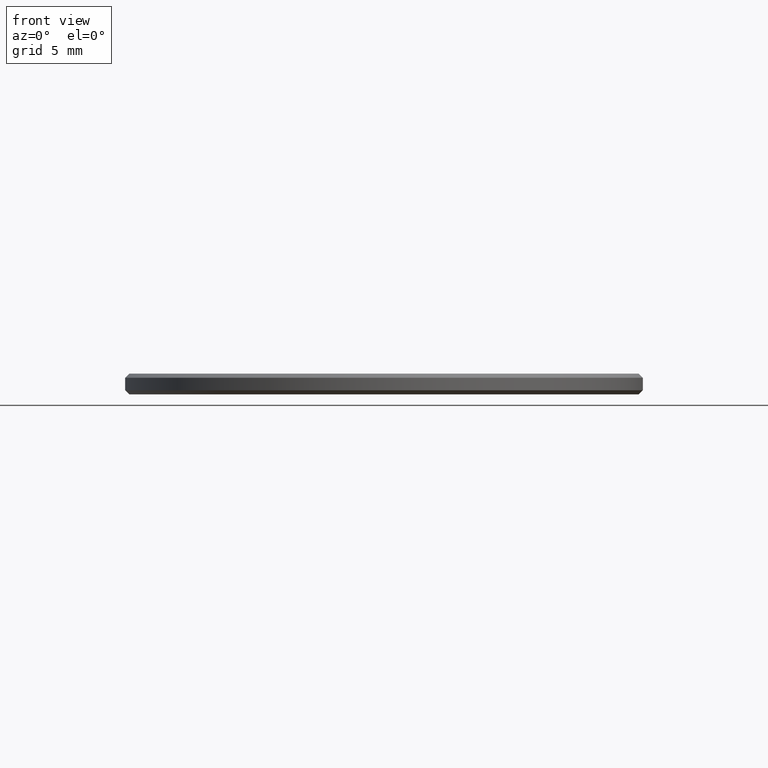
[diagram: clean part render]
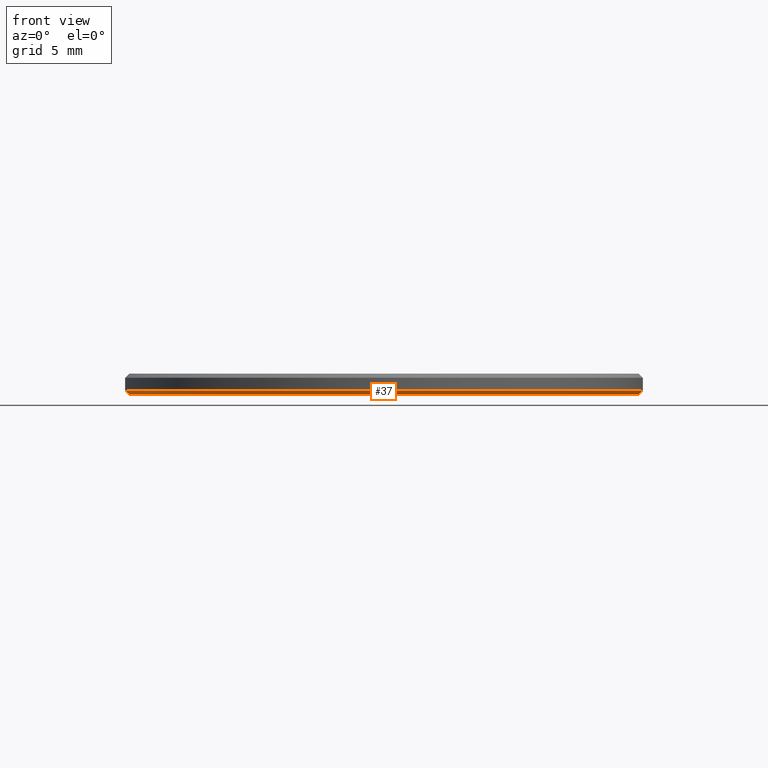
[diagram: same view with one face highlighted and labeled with its STEP entity id]
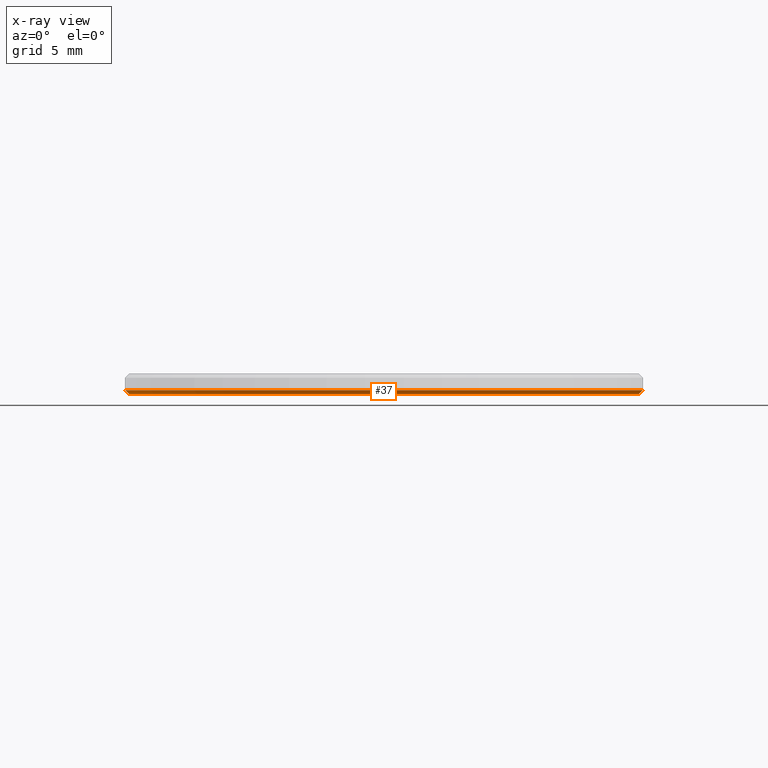
[diagram: x-ray of the same camera — body ghosted, the highlighted face saturated]
A machine part, front view. The second image highlights one B-rep face of the part: STEP entity #37.
The next image is the same camera in x-ray: the body ghosted, the highlighted face saturated — about 0% of this face is hidden behind the body in this view.
In plain terms, the highlighted conical surface has half-angle 45 deg.
Its self-contained STEP definition (entity closure, byte-faithful):
#1 = EDGE_CURVE ( 'NONE', #113, #114, #56, .T. ) ;
#3 = LINE ( 'NONE', #24, #41 ) ;
#5 = CARTESIAN_POINT ( 'NONE',  ( -12.50000000000000000, 0.000000000000000000, 0.1999999999999987899 ) ) ;
#8 = DIRECTION ( 'NONE',  ( -0.7071067811865474617, 8.659560562354932858E-17, 0.7071067811865474617 ) ) ;
#11 = DIRECTION ( 'NONE',  ( -0.000000000000000000, -0.000000000000000000, 1.000000000000000000 ) ) ;
#20 = AXIS2_PLACEMENT_3D ( 'NONE', #176, #83, #157 ) ;
#24 = CARTESIAN_POINT ( 'NONE',  ( -12.50000000000000000, 1.530808498934191521E-15, 0.1999999999999987899 ) ) ;
#37 = ADVANCED_FACE ( 'NONE', ( #198 ), #40, .T. ) ;
#40 = CONICAL_SURFACE ( 'NONE', #221, 12.50000000000000000, 0.7853981633974482790 ) ;
#41 = VECTOR ( 'NONE', #8, 1000.000000000000114 ) ;
#56 = LINE ( 'NONE', #65, #183 ) ;
#60 = DIRECTION ( 'NONE',  ( 1.000000000000000000, 0.000000000000000000, 0.000000000000000000 ) ) ;
#63 = ORIENTED_EDGE ( 'NONE', *, *, #1, .T. ) ;
#65 = CARTESIAN_POINT ( 'NONE',  ( 12.50000000000000000, 0.000000000000000000, 0.1999999999999987899 ) ) ;
#76 = EDGE_LOOP ( 'NONE', ( #231, #168, #63, #97 ) ) ;
#83 = DIRECTION ( 'NONE',  ( -0.000000000000000000, -0.000000000000000000, 1.000000000000000000 ) ) ;
#85 = CIRCLE ( 'NONE', #112, 12.30000000000000249 ) ;
#89 = EDGE_CURVE ( 'NONE', #209, #114, #125, .T. ) ;
#97 = ORIENTED_EDGE ( 'NONE', *, *, #89, .F. ) ;
#112 = AXIS2_PLACEMENT_3D ( 'NONE', #232, #226, #60 ) ;
#113 = VERTEX_POINT ( 'NONE', #146 ) ;
#114 = VERTEX_POINT ( 'NONE', #219 ) ;
#125 = CIRCLE ( 'NONE', #20, 12.50000000000000000 ) ;
#139 = DIRECTION ( 'NONE',  ( 1.000000000000000000, 0.000000000000000000, 0.000000000000000000 ) ) ;
#146 = CARTESIAN_POINT ( 'NONE',  ( 12.30000000000000249, 0.000000000000000000, 0.000000000000000000 ) ) ;
#150 = VERTEX_POINT ( 'NONE', #210 ) ;
#157 = DIRECTION ( 'NONE',  ( 1.000000000000000000, 0.000000000000000000, 0.000000000000000000 ) ) ;
#158 = CARTESIAN_POINT ( 'NONE',  ( 0.000000000000000000, 0.000000000000000000, 0.1999999999999987899 ) ) ;
#168 = ORIENTED_EDGE ( 'NONE', *, *, #222, .F. ) ;
#175 = EDGE_CURVE ( 'NONE', #150, #209, #3, .T. ) ;
#176 = CARTESIAN_POINT ( 'NONE',  ( 0.000000000000000000, 0.000000000000000000, 0.1999999999999987899 ) ) ;
#180 = DIRECTION ( 'NONE',  ( 0.7071067811865474617, 0.000000000000000000, 0.7071067811865474617 ) ) ;
#183 = VECTOR ( 'NONE', #180, 1000.000000000000114 ) ;
#198 = FACE_OUTER_BOUND ( 'NONE', #76, .T. ) ;
#209 = VERTEX_POINT ( 'NONE', #5 ) ;
#210 = CARTESIAN_POINT ( 'NONE',  ( -12.30000000000000249, 1.518562030942718164E-15, 0.000000000000000000 ) ) ;
#219 = CARTESIAN_POINT ( 'NONE',  ( 12.50000000000000000, 1.530808498934191521E-15, 0.1999999999999987899 ) ) ;
#221 = AXIS2_PLACEMENT_3D ( 'NONE', #158, #11, #139 ) ;
#222 = EDGE_CURVE ( 'NONE', #113, #150, #85, .T. ) ;
#226 = DIRECTION ( 'NONE',  ( -0.000000000000000000, -0.000000000000000000, -1.000000000000000000 ) ) ;
#231 = ORIENTED_EDGE ( 'NONE', *, *, #175, .F. ) ;
#232 = CARTESIAN_POINT ( 'NONE',  ( 0.000000000000000000, 0.000000000000000000, 0.000000000000000000 ) ) ;